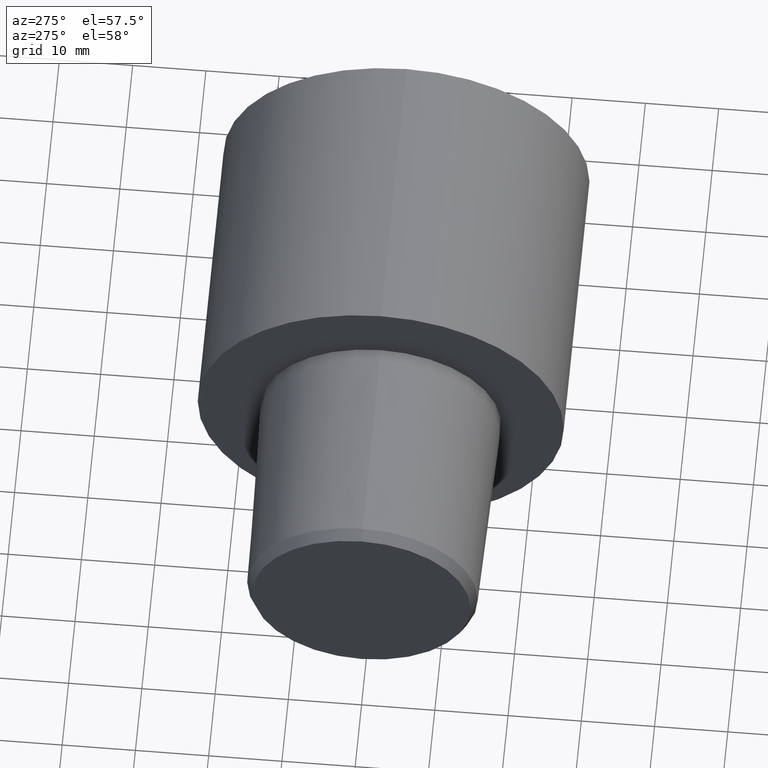
[diagram: clean part render]
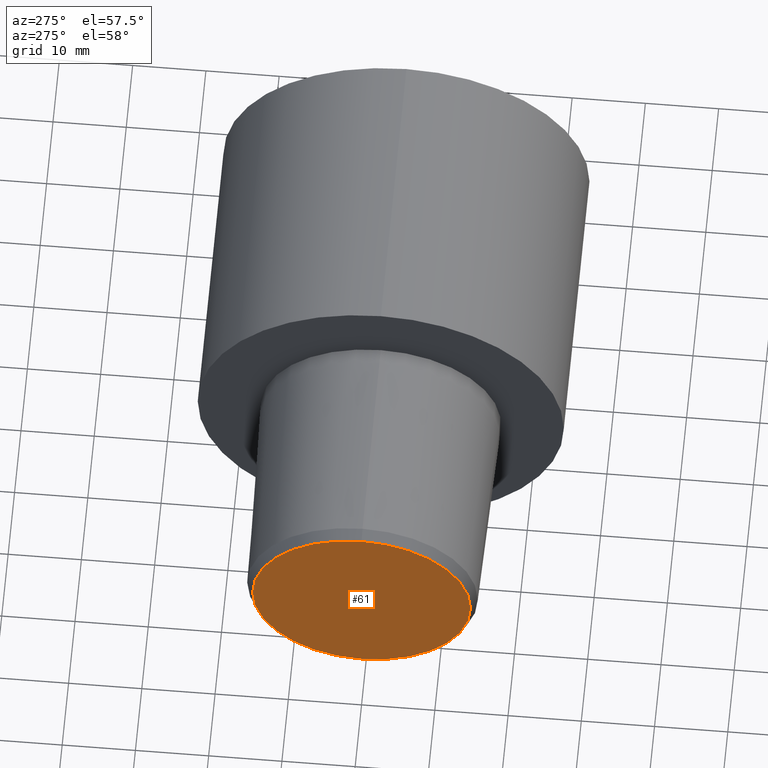
[diagram: same view with one face highlighted and labeled with its STEP entity id]
A machine part, auxiliary view. The second image highlights one B-rep face of the part: STEP entity #61.
In plain terms, the highlighted planar face has unit normal (1, 0, 0).
Its self-contained STEP definition (entity closure, byte-faithful):
#12 = ORIENTED_EDGE ( 'NONE', *, *, #221, .T. ) ;
#32 = EDGE_CURVE ( 'NONE', #83, #103, #34, .T. ) ;
#34 = CIRCLE ( 'NONE', #313, 14.87641846198772733 ) ;
#53 = PLANE ( 'NONE',  #59 ) ;
#55 = CIRCLE ( 'NONE', #220, 14.87641846198772733 ) ;
#59 = AXIS2_PLACEMENT_3D ( 'NONE', #136, #108, #337 ) ;
#61 = ADVANCED_FACE ( 'NONE', ( #304 ), #53, .F. ) ;
#80 = DIRECTION ( 'NONE',  ( 0.000000000000000000, 0.000000000000000000, 1.000000000000000000 ) ) ;
#83 = VERTEX_POINT ( 'NONE', #323 ) ;
#102 = CARTESIAN_POINT ( 'NONE',  ( -29.99999996776130118, 0.000000000000000000, 0.000000000000000000 ) ) ;
#103 = VERTEX_POINT ( 'NONE', #157 ) ;
#108 = DIRECTION ( 'NONE',  ( 1.000000000000000000, 0.000000000000000000, 0.000000000000000000 ) ) ;
#136 = CARTESIAN_POINT ( 'NONE',  ( -29.99999996776130118, 14.87641846198772733, 0.000000000000000000 ) ) ;
#157 = CARTESIAN_POINT ( 'NONE',  ( -29.99999996776130118, 1.874864587049208810E-15, 14.87641846198772733 ) ) ;
#171 = CARTESIAN_POINT ( 'NONE',  ( -29.99999996776130118, 0.000000000000000000, 0.000000000000000000 ) ) ;
#219 = ORIENTED_EDGE ( 'NONE', *, *, #32, .T. ) ;
#220 = AXIS2_PLACEMENT_3D ( 'NONE', #102, #315, #263 ) ;
#221 = EDGE_CURVE ( 'NONE', #103, #83, #55, .T. ) ;
#260 = EDGE_LOOP ( 'NONE', ( #219, #12 ) ) ;
#263 = DIRECTION ( 'NONE',  ( 0.000000000000000000, 0.000000000000000000, 1.000000000000000000 ) ) ;
#304 = FACE_OUTER_BOUND ( 'NONE', #260, .T. ) ;
#310 = DIRECTION ( 'NONE',  ( -1.000000000000000000, 0.000000000000000000, 0.000000000000000000 ) ) ;
#313 = AXIS2_PLACEMENT_3D ( 'NONE', #171, #310, #80 ) ;
#315 = DIRECTION ( 'NONE',  ( -1.000000000000000000, 0.000000000000000000, 0.000000000000000000 ) ) ;
#323 = CARTESIAN_POINT ( 'NONE',  ( -29.99999996776130118, 0.000000000000000000, -14.87641846198772733 ) ) ;
#337 = DIRECTION ( 'NONE',  ( 0.000000000000000000, 1.000000000000000000, 0.000000000000000000 ) ) ;